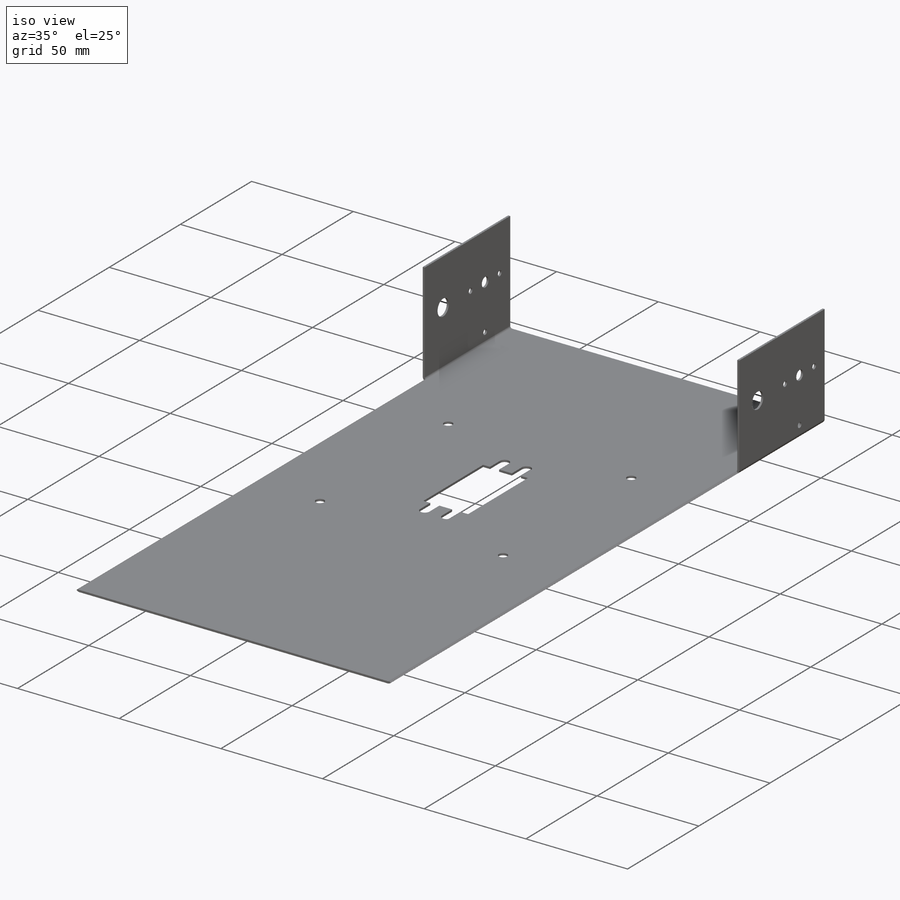
[diagram: iso view]
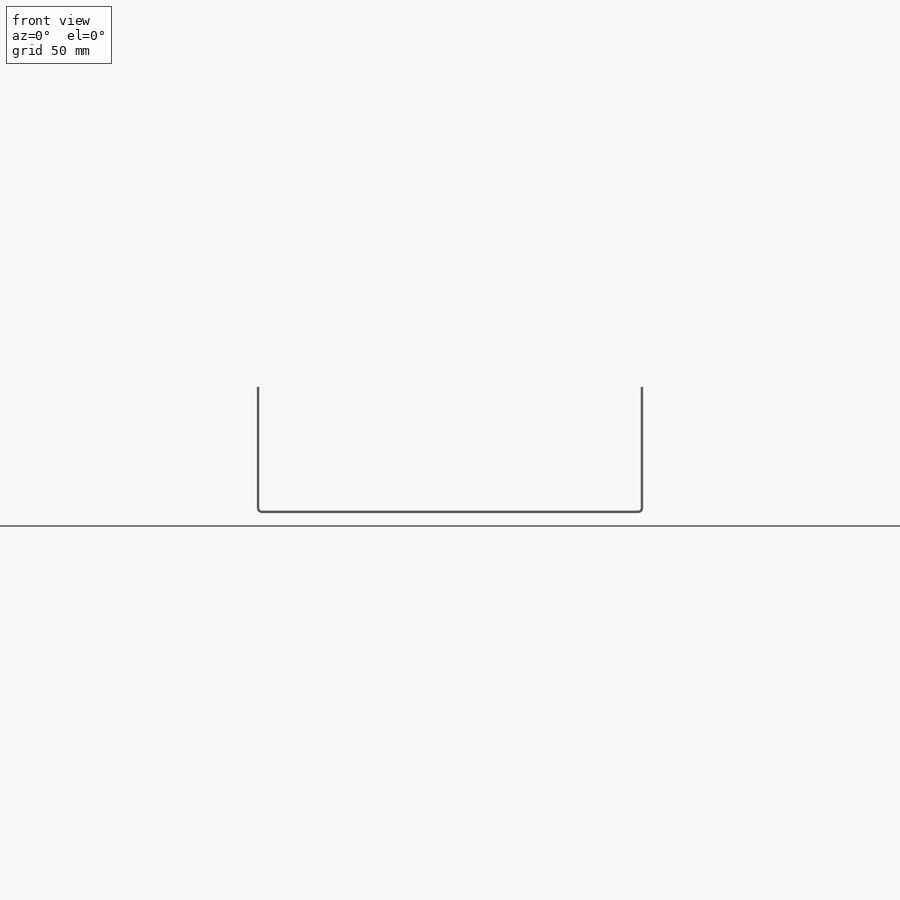
[diagram: front view]
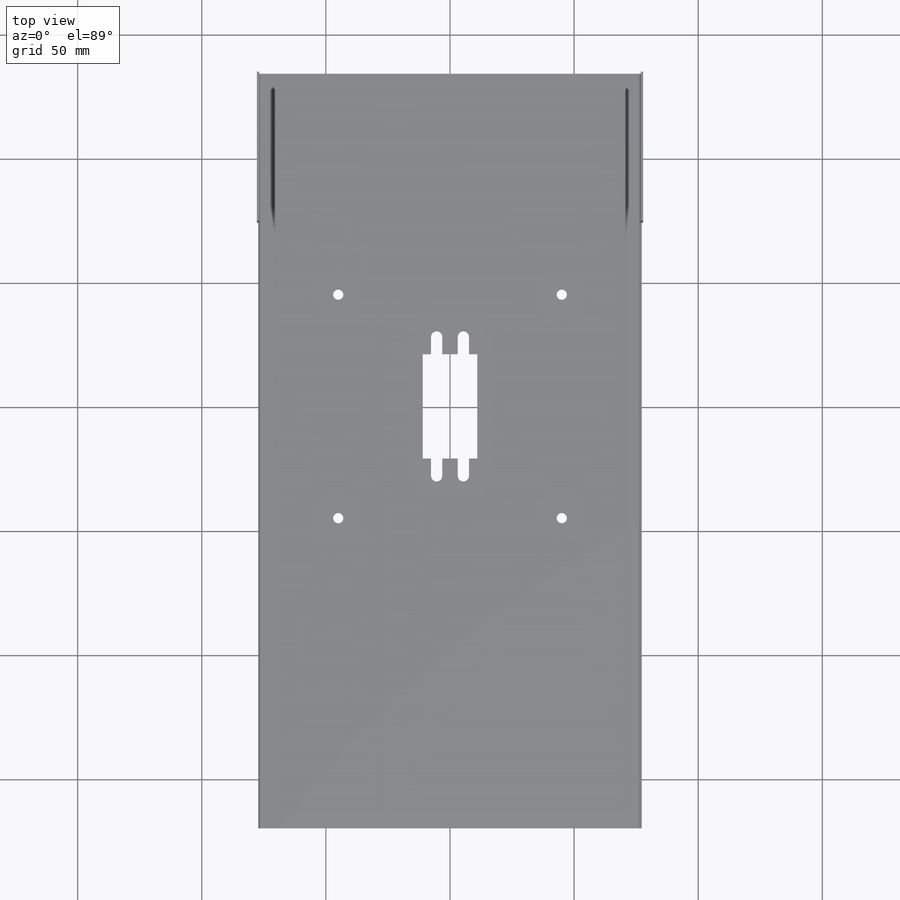
[diagram: top view]
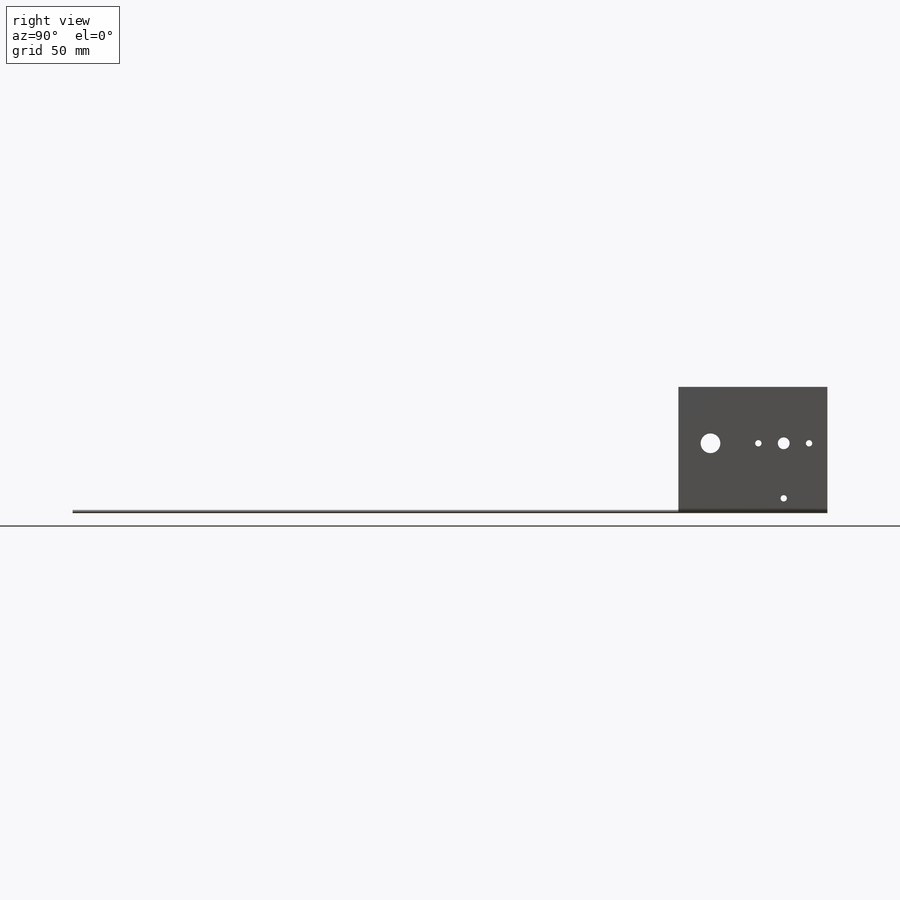
[diagram: right view]
SOLIDWORKS PART (.sldprt)
format: sldprt  version: not decoded by parser v0  size: 615,936 bytes
history: native  units: mm
features: sketch x33, sheet_metal_op x10, cut_extrude x5, plane x4, mirror x2, material x1, extrude x1 + 10 further entries (+12 scaffold rows collapsed; 1 parser-record rows omitted)
feature tree (79):
  scaffold x12  (default folders/planes/origin — collapsed)
  material  "Material <not specified>"
  sketch  "Sketch1"  dims[c1.D1=154.0mm c1.D2=304.0mm c2.D1=1.0mm c2.D2=0.5 c2.D3=0.0mm c2.D6=500.0mm]
  sheet_metal_op  "Base-Flange1"
  sketch  "Sketch2"  dims[D3=4.1mm D6=4.1mm D7=4.1mm D8=4.1mm D1=102.4mm D2=102.4mm D4=6.18mm D5=6.18mm D9=6.18mm D10=6.18mm]
  sketch  "Sketch4"  dims[D6=~1.982252mm D1=149.0mm D2=42.0mm D3=22.0mm D4=4.5mm D5=14.0mm]
  plane  "Plane1"
  plane  "Plane2"
  cut_extrude  "Cut-Extrude3"  Depth=10mm
  mirror  "Mirror1"
  mirror  "Mirror2"
  cut_extrude  "Cut-Extrude4"  Depth=10mm
  plane  "Plane3"
  plane  "Plane4"
  sketch  "Sketch7"
  sketch  "Sketch8"
  sketch  "Sketch9"
  sketch  "Sketch10"  dims[c1.D1=~70.868438mm c1.D2=~79.98562mm c2.D1=50.0mm c2.D2=60.0mm c2.D3=60.0mm c2.D4=~61.078019mm c3.D3=50.0mm c3.D4=60.0mm]
  extrude  "Boss-Extrude2"  Depth=1mm
  sketch  "Sketch11"  dims[c1.D1=7.95mm c1.D2=7.95mm c1.D4=~10.281413mm c1.D6=2.54mm c1.D7=4.75mm c1.D10=2.54mm c2.D2=12.93mm c2.D3=22.71mm c2.D4=32.22mm c2.D5=~34.243182mm c3.D4=32.22mm c3.D5=22.71mm c3.D8=22.71mm c3.D9=29.5mm c3.D11=7.36mm c3.D12=22.71mm]
  cut_extrude  "Cut-Extrude6"  Depth=1mm
  sketch  "Sketch12"  dims[D1=2.54mm D2=44.88mm D3=17.57mm]
  cut_extrude  "Cut-Extrude7"  Depth=1mm
  sketch  "Sketch13"  dims[c1.D1=7.95mm c1.D4=2.54mm c1.D7=4.75mm c1.D10=2.54mm c1.D13=2.54mm c1.D15=2.54mm c1.D2=22.71mm c1.D3=12.93mm c1.D5=22.71mm c1.D6=32.22mm c1.D8=29.5mm c1.D9=22.71mm c1.D11=22.71mm c1.D12=7.36mm c1.D14=22.17mm c2.D15=17.57mm]
  cut_extrude  "Cut-Extrude8"  Depth=1mm
  sketch  "Sketch14"
  sketch  "Sketch19"  dims[D1=~9.188509mm]
  parser-record x1  (decoder bookkeeping rows leaked as tree rows — omitted from the tree; the rows remain in map.json)
  sketch  "Sketch20"  dims[D1=~136.22566mm]
  "SketchBend2"
  sketch  "Bend-Lines1"
  sketch  "Bounding-Box1"
  sheet_metal_op  "Sheet-Metal(1)"
  "Flat-Pattern(1)"
  sketch  "Bend-Lines2"
  sketch  "Bounding-Box2"
  sheet_metal_op  "Sheet-Metal(15)"
  "Flat-Pattern(1)"
  sketch  "Bend-Lines2"
  sketch  "Bounding-Box2"
  sheet_metal_op  "Sheet-Metal(16)"
  "Flat-Pattern(1)"
  sketch  "Bend-Lines2"
  sketch  "Bounding-Box2"
  sheet_metal_op  "Sheet-Metal(17)"
  "Flat-Pattern(1)"
  sketch  "Bend-Lines2"
  sketch  "Bounding-Box2"
  sheet_metal_op  "Sheet-Metal(18)"
  "Flat-Pattern(1)"
  sketch  "Bend-Lines2"
  sketch  "Bounding-Box2"
  sheet_metal_op  "Sheet-Metal(21)"
  "Flat-Pattern(1)"
  sketch  "Bend-Lines2"
  sketch  "Bounding-Box2"
  sheet_metal_op  "Sheet-Metal(22)"
  "Flat-Pattern(1)"
  sketch  "Bend-Lines2"
  sketch  "Bounding-Box2"
  sheet_metal_op  "Sheet-Metal(23)"
  "Flat-Pattern(1)"
  sketch  "Bend-Lines2"
  sketch  "Bounding-Box2"
  sheet_metal_op  "Sheet-Metal(24)"
  "Flat-Pattern(1)"
  sketch  "Bend-Lines2"
  sketch  "Bounding-Box2"
decode coverage: 15 of 51 modeling features carry decoded parameters; 10 rows unclassified (native names shown)
note: ~ marks probable driven/reference dimensions
note: suppression state not decoded; provenance and decode notes live in map.json
